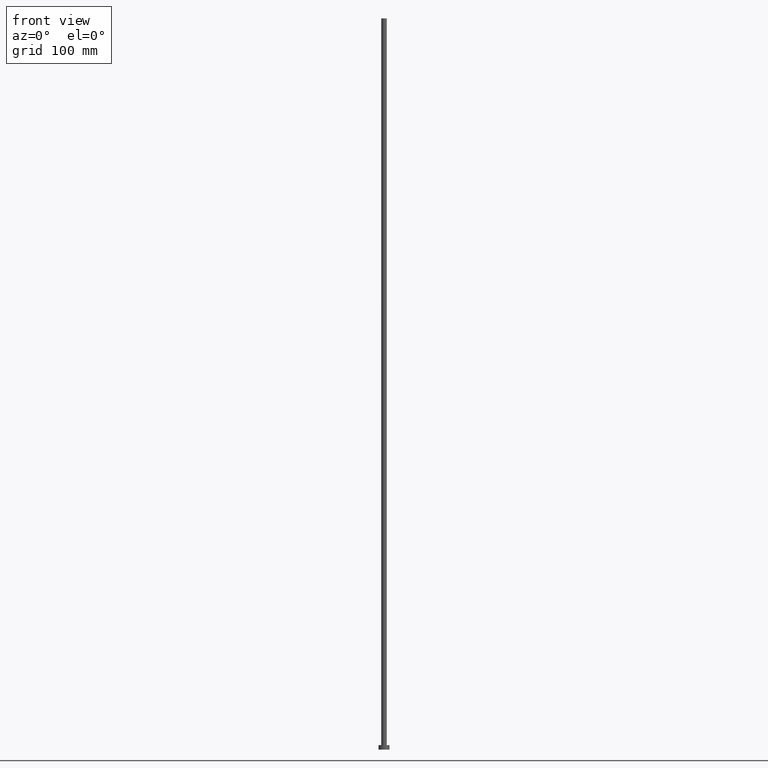
[diagram: clean part render]
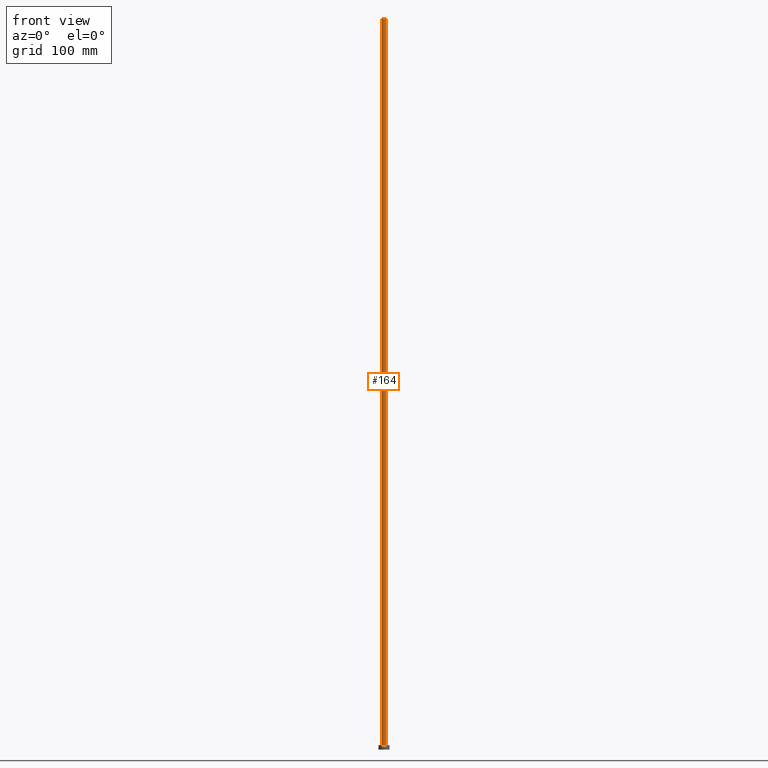
[diagram: same view with one face highlighted and labeled with its STEP entity id]
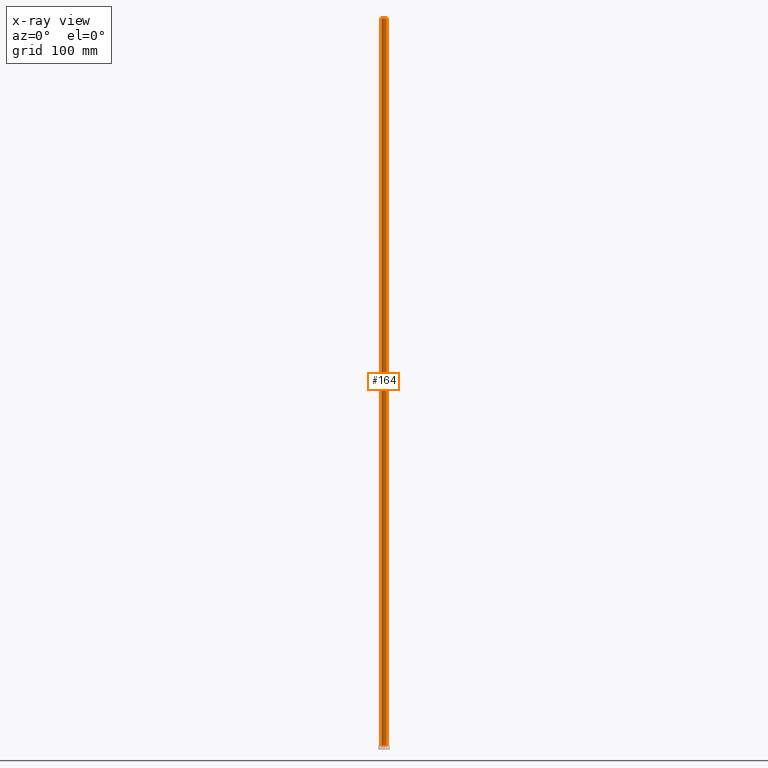
[diagram: x-ray of the same camera — body ghosted, the highlighted face saturated]
A machine part, front view. The second image highlights one B-rep face of the part: STEP entity #164.
The next image is the same camera in x-ray: the body ghosted, the highlighted face saturated — about 0% of this face is hidden behind the body in this view.
In plain terms, the highlighted cylindrical surface (edge-blend (fillet) strip) has radius 3 mm, axis along (-0, -0, -1).
Its self-contained STEP definition (entity closure, byte-faithful):
#1 = DIRECTION ( 'NONE',  ( 1.000000000000000000, 0.000000000000000000, 0.000000000000000000 ) ) ;
#6 = AXIS2_PLACEMENT_3D ( 'NONE', #241, #111, #92 ) ;
#9 = LINE ( 'NONE', #49, #182 ) ;
#16 = EDGE_CURVE ( 'NONE', #255, #240, #185, .T. ) ;
#21 = ORIENTED_EDGE ( 'NONE', *, *, #184, .T. ) ;
#24 = ORIENTED_EDGE ( 'NONE', *, *, #46, .T. ) ;
#30 = CYLINDRICAL_SURFACE ( 'NONE', #227, 3.000000000000000444 ) ;
#32 = DIRECTION ( 'NONE',  ( -0.000000000000000000, -0.000000000000000000, -1.000000000000000000 ) ) ;
#41 = CARTESIAN_POINT ( 'NONE',  ( 3.000000000000000444, 3.673940397442060361E-16, 800.0000000000000000 ) ) ;
#46 = EDGE_CURVE ( 'NONE', #61, #240, #102, .T. ) ;
#49 = CARTESIAN_POINT ( 'NONE',  ( -3.000000000000000444, 0.000000000000000000, 800.0000000000000000 ) ) ;
#53 = ORIENTED_EDGE ( 'NONE', *, *, #16, .F. ) ;
#61 = VERTEX_POINT ( 'NONE', #141 ) ;
#63 = CARTESIAN_POINT ( 'NONE',  ( 3.000000000000000444, 3.673940397442060361E-16, 5.000000000000000000 ) ) ;
#69 = CARTESIAN_POINT ( 'NONE',  ( 3.000000000000000444, 3.673940397442060361E-16, 800.0000000000000000 ) ) ;
#82 = CIRCLE ( 'NONE', #6, 3.000000000000000444 ) ;
#89 = AXIS2_PLACEMENT_3D ( 'NONE', #108, #215, #1 ) ;
#91 = CARTESIAN_POINT ( 'NONE',  ( 0.000000000000000000, 0.000000000000000000, 800.0000000000000000 ) ) ;
#92 = DIRECTION ( 'NONE',  ( 1.000000000000000000, 0.000000000000000000, 0.000000000000000000 ) ) ;
#102 = CIRCLE ( 'NONE', #89, 3.000000000000000444 ) ;
#108 = CARTESIAN_POINT ( 'NONE',  ( 0.000000000000000000, 0.000000000000000000, 5.000000000000000000 ) ) ;
#111 = DIRECTION ( 'NONE',  ( 0.000000000000000000, 0.000000000000000000, 1.000000000000000000 ) ) ;
#122 = EDGE_LOOP ( 'NONE', ( #53, #214, #21, #24 ) ) ;
#128 = DIRECTION ( 'NONE',  ( -0.000000000000000000, -0.000000000000000000, -1.000000000000000000 ) ) ;
#141 = CARTESIAN_POINT ( 'NONE',  ( -3.000000000000000444, 0.000000000000000000, 5.000000000000000000 ) ) ;
#146 = DIRECTION ( 'NONE',  ( -1.000000000000000000, 0.000000000000000000, 0.000000000000000000 ) ) ;
#164 = ADVANCED_FACE ( 'NONE', ( #167 ), #30, .T. ) ;
#167 = FACE_OUTER_BOUND ( 'NONE', #122, .T. ) ;
#182 = VECTOR ( 'NONE', #128, 1000.000000000000000 ) ;
#184 = EDGE_CURVE ( 'NONE', #220, #61, #9, .T. ) ;
#185 = LINE ( 'NONE', #41, #188 ) ;
#188 = VECTOR ( 'NONE', #200, 1000.000000000000000 ) ;
#200 = DIRECTION ( 'NONE',  ( -0.000000000000000000, -0.000000000000000000, -1.000000000000000000 ) ) ;
#214 = ORIENTED_EDGE ( 'NONE', *, *, #225, .F. ) ;
#215 = DIRECTION ( 'NONE',  ( 0.000000000000000000, 0.000000000000000000, 1.000000000000000000 ) ) ;
#220 = VERTEX_POINT ( 'NONE', #222 ) ;
#222 = CARTESIAN_POINT ( 'NONE',  ( -3.000000000000000444, 0.000000000000000000, 800.0000000000000000 ) ) ;
#225 = EDGE_CURVE ( 'NONE', #220, #255, #82, .T. ) ;
#227 = AXIS2_PLACEMENT_3D ( 'NONE', #91, #32, #146 ) ;
#240 = VERTEX_POINT ( 'NONE', #63 ) ;
#241 = CARTESIAN_POINT ( 'NONE',  ( 0.000000000000000000, 0.000000000000000000, 800.0000000000000000 ) ) ;
#255 = VERTEX_POINT ( 'NONE', #69 ) ;